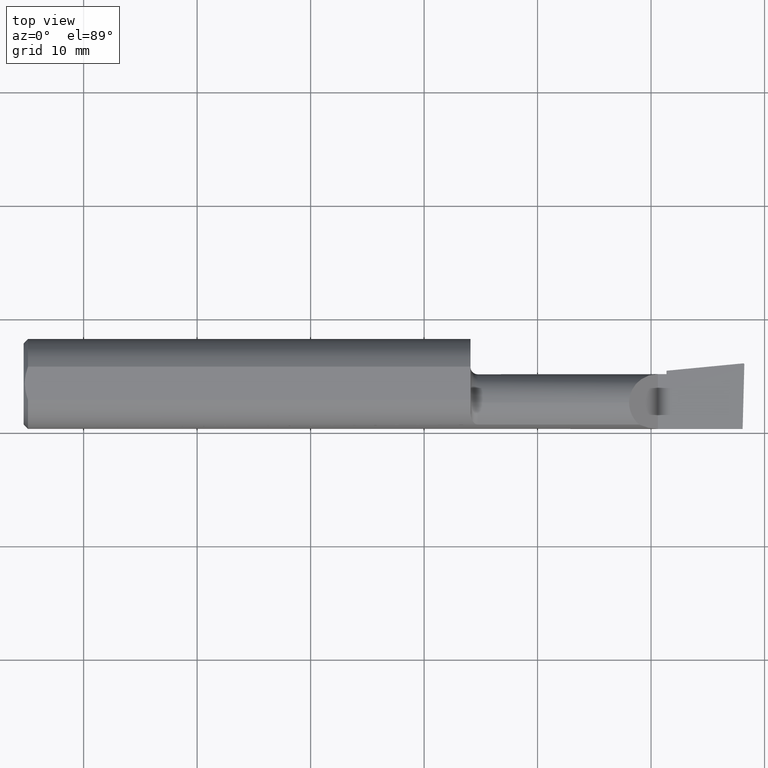
[diagram: clean part render]
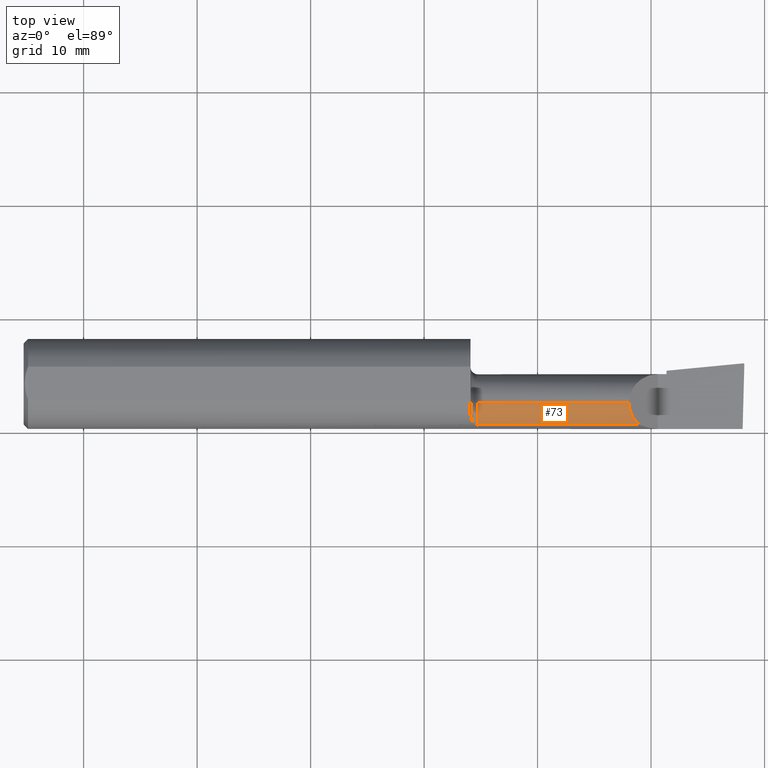
[diagram: same view with one face highlighted and labeled with its STEP entity id]
A machine part, top view. The second image highlights one B-rep face of the part: STEP entity #73.
In plain terms, the highlighted cylindrical surface (edge-blend (fillet) strip) has radius 2.54 mm, axis along (-1, -0, -0).
Its self-contained STEP definition (entity closure, byte-faithful):
#7 = CARTESIAN_POINT ( 'NONE',  ( 39.37000000000000455, -1.678939999999999433, 2.540000000000000036 ) ) ;
#11 = CARTESIAN_POINT ( 'NONE',  ( 53.34253999999998541, -1.678939999999999433, 2.540000000000000036 ) ) ;
#13 = CARTESIAN_POINT ( 'NONE',  ( 54.22074505735906769, -3.599887049924353821, 1.661794942640917094 ) ) ;
#73 = ADVANCED_FACE ( 'NONE', ( #667 ), #843, .T. ) ;
#94 = VERTEX_POINT ( 'NONE', #1227 ) ;
#185 = CARTESIAN_POINT ( 'NONE',  ( 40.00499999999999545, -1.678939999999999433, 0.000000000000000000 ) ) ;
#215 = DIRECTION ( 'NONE',  ( 1.000000000000000000, 0.000000000000000000, 0.000000000000000000 ) ) ;
#250 = EDGE_CURVE ( 'NONE', #451, #353, #604, .T. ) ;
#269 = DIRECTION ( 'NONE',  ( 0.000000000000000000, 0.000000000000000000, -1.000000000000000000 ) ) ;
#275 = EDGE_CURVE ( 'NONE', #94, #451, #872, .T. ) ;
#313 = ORIENTED_EDGE ( 'NONE', *, *, #275, .T. ) ;
#315 = CARTESIAN_POINT ( 'NONE',  ( 40.00499999999999545, -3.599887049924355154, 1.661794942640912653 ) ) ;
#353 = VERTEX_POINT ( 'NONE', #315 ) ;
#374 = VERTEX_POINT ( 'NONE', #13 ) ;
#391 = CARTESIAN_POINT ( 'NONE',  ( 53.34253999999998541, -2.428222866824016446, 2.540000000000000036 ) ) ;
#451 = VERTEX_POINT ( 'NONE', #886 ) ;
#468 = DIRECTION ( 'NONE',  ( 0.000000000000000000, 0.000000000000000000, 1.000000000000000000 ) ) ;
#472 = EDGE_CURVE ( 'NONE', #353, #374, #500, .T. ) ;
#495 =( BOUNDED_CURVE ( )  B_SPLINE_CURVE ( 3, ( #11, #391, #1223, #1115 ),
 .UNSPECIFIED., .F., .T. ) 
 B_SPLINE_CURVE_WITH_KNOTS ( ( 4, 4 ),
 ( 0.000000000000000000, 0.8576058604657700313 ),
 .UNSPECIFIED. ) 
 CURVE ( )  GEOMETRIC_REPRESENTATION_ITEM ( )  RATIONAL_B_SPLINE_CURVE ( ( 1.000000000000000000, 0.9396427478180653381, 0.9396427478180653381, 1.000000000000000000 ) ) 
 REPRESENTATION_ITEM ( '' )  );
#500 = LINE ( 'NONE', #1082, #622 ) ;
#568 = DIRECTION ( 'NONE',  ( -1.000000000000000000, -0.000000000000000000, -0.000000000000000000 ) ) ;
#588 = AXIS2_PLACEMENT_3D ( 'NONE', #932, #766, #468 ) ;
#604 = CIRCLE ( 'NONE', #704, 2.540000000000000036 ) ;
#618 = ORIENTED_EDGE ( 'NONE', *, *, #472, .T. ) ;
#622 = VECTOR ( 'NONE', #215, 1000.000000000000000 ) ;
#667 = FACE_OUTER_BOUND ( 'NONE', #845, .T. ) ;
#704 = AXIS2_PLACEMENT_3D ( 'NONE', #185, #1140, #269 ) ;
#766 = DIRECTION ( 'NONE',  ( -1.000000000000000000, -0.000000000000000000, -0.000000000000000000 ) ) ;
#843 = CYLINDRICAL_SURFACE ( 'NONE', #588, 2.540000000000000036 ) ;
#845 = EDGE_LOOP ( 'NONE', ( #988, #313, #922, #618 ) ) ;
#872 = LINE ( 'NONE', #7, #1195 ) ;
#886 = CARTESIAN_POINT ( 'NONE',  ( 40.00499999999999545, -1.678939999999999433, 2.540000000000000036 ) ) ;
#917 = EDGE_CURVE ( 'NONE', #94, #374, #495, .T. ) ;
#922 = ORIENTED_EDGE ( 'NONE', *, *, #250, .T. ) ;
#932 = CARTESIAN_POINT ( 'NONE',  ( 39.37000000000000455, -1.678939999999999433, 0.000000000000000000 ) ) ;
#988 = ORIENTED_EDGE ( 'NONE', *, *, #917, .F. ) ;
#1082 = CARTESIAN_POINT ( 'NONE',  ( 48.00600000000000023, -3.599887049924355154, 1.661794942640912653 ) ) ;
#1115 = CARTESIAN_POINT ( 'NONE',  ( 54.22074505735906769, -3.599887049924353821, 1.661794942640917094 ) ) ;
#1140 = DIRECTION ( 'NONE',  ( 1.000000000000000000, 0.000000000000000000, 0.000000000000000000 ) ) ;
#1195 = VECTOR ( 'NONE', #568, 1000.000000000000000 ) ;
#1223 = CARTESIAN_POINT ( 'NONE',  ( 53.65407863508172426, -3.109668751225283412, 2.228461364918261189 ) ) ;
#1227 = CARTESIAN_POINT ( 'NONE',  ( 53.34253999999998541, -1.678939999999999433, 2.540000000000000036 ) ) ;